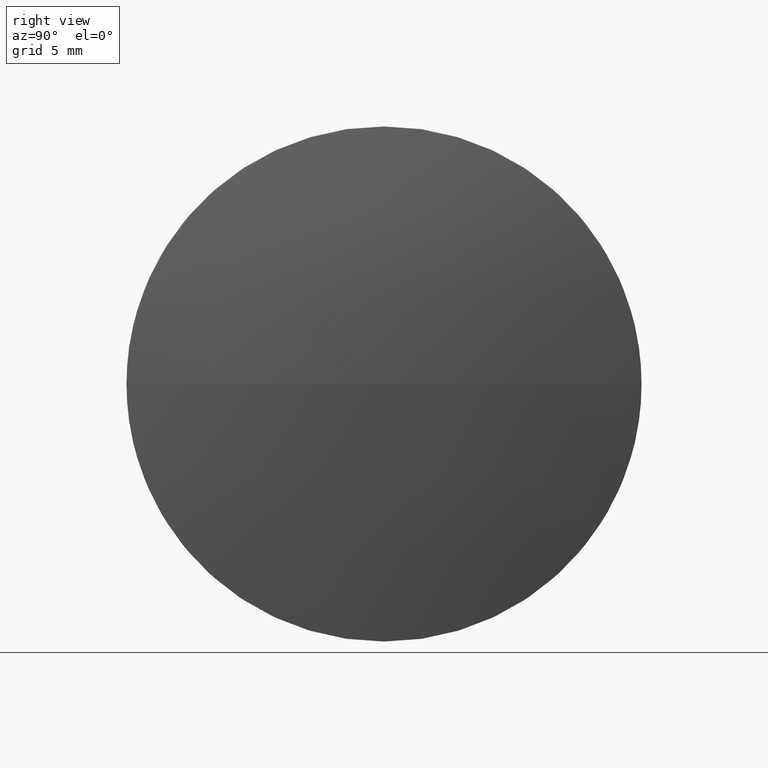
[diagram: clean part render]
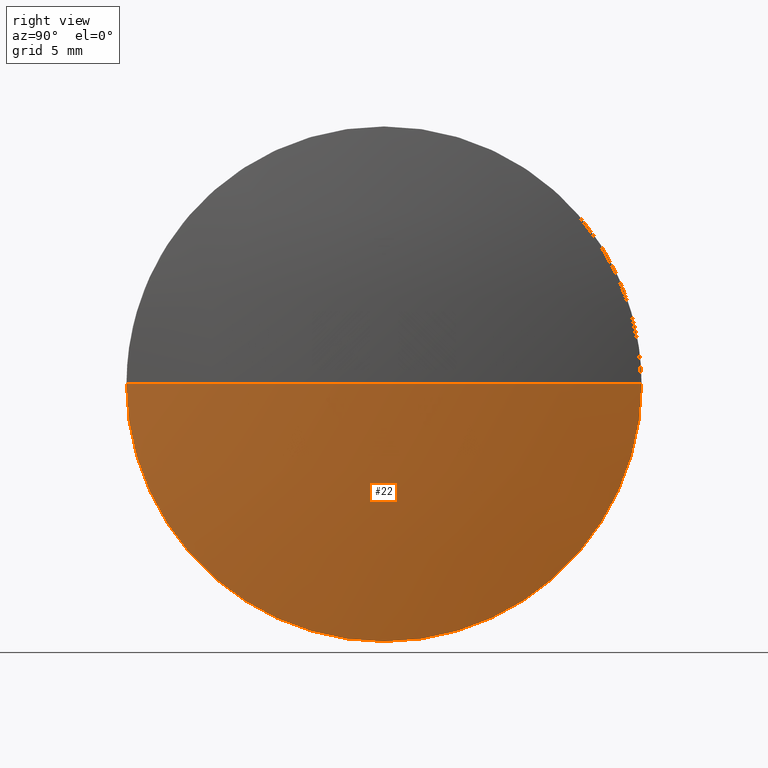
[diagram: same view with one face highlighted and labeled with its STEP entity id]
A machine part, right view. The second image highlights one B-rep face of the part: STEP entity #22.
In plain terms, the highlighted spherical surface has radius 64.6469 mm.
Its self-contained STEP definition (entity closure, byte-faithful):
#1 = EDGE_CURVE ( 'NONE', #79, #54, #132, .T. ) ;
#10 = ORIENTED_EDGE ( 'NONE', *, *, #63, .F. ) ;
#15 = ORIENTED_EDGE ( 'NONE', *, *, #177, .F. ) ;
#16 = CARTESIAN_POINT ( 'NONE',  ( 663.6944572841594000, 125.1777850517631400, 0.0000000000000000000 ) ) ;
#18 = ORIENTED_EDGE ( 'NONE', *, *, #1, .T. ) ;
#22 = ADVANCED_FACE ( 'NONE', ( #66 ), #142, .T. ) ;
#26 = DIRECTION ( 'NONE',  ( -1.000000000000000000, -0.0000000000000000000, -0.0000000000000000000 ) ) ;
#30 = EDGE_CURVE ( 'NONE', #79, #40, #109, .T. ) ;
#37 = CIRCLE ( 'NONE', #160, 12.50000000000001100 ) ;
#40 = VERTEX_POINT ( 'NONE', #16 ) ;
#46 = DIRECTION ( 'NONE',  ( 0.0000000000000000000, 0.0000000000000000000, 1.000000000000000000 ) ) ;
#47 = AXIS2_PLACEMENT_3D ( 'NONE', #155, #172, #168 ) ;
#50 = EDGE_LOOP ( 'NONE', ( #53, #18, #10, #15 ) ) ;
#53 = ORIENTED_EDGE ( 'NONE', *, *, #30, .F. ) ;
#54 = VERTEX_POINT ( 'NONE', #165 ) ;
#63 = EDGE_CURVE ( 'NONE', #123, #54, #37, .T. ) ;
#64 = CIRCLE ( 'NONE', #106, 12.50000000000001100 ) ;
#66 = FACE_OUTER_BOUND ( 'NONE', #50, .T. ) ;
#68 = DIRECTION ( 'NONE',  ( 0.0000000000000000000, 1.224646799147353200E-016, -1.000000000000000000 ) ) ;
#75 = CARTESIAN_POINT ( 'NONE',  ( 663.6944572841594000, 112.6777850517631800, 0.0000000000000000000 ) ) ;
#79 = VERTEX_POINT ( 'NONE', #133 ) ;
#80 = AXIS2_PLACEMENT_3D ( 'NONE', #102, #137, #153 ) ;
#102 = CARTESIAN_POINT ( 'NONE',  ( 600.2675720382576400, 112.6777850517629700, 0.0000000000000000000 ) ) ;
#104 = CARTESIAN_POINT ( 'NONE',  ( 663.6944572841594000, 112.6777850517631800, 0.0000000000000000000 ) ) ;
#106 = AXIS2_PLACEMENT_3D ( 'NONE', #75, #134, #183 ) ;
#109 = CIRCLE ( 'NONE', #47, 64.64688524590178500 ) ;
#123 = VERTEX_POINT ( 'NONE', #150 ) ;
#132 = CIRCLE ( 'NONE', #144, 64.64688524590182800 ) ;
#133 = CARTESIAN_POINT ( 'NONE',  ( 664.9144572841594300, 112.6777850517629700, 0.0000000000000000000 ) ) ;
#134 = DIRECTION ( 'NONE',  ( -1.000000000000000000, -0.0000000000000000000, -0.0000000000000000000 ) ) ;
#137 = DIRECTION ( 'NONE',  ( -0.0000000000000000000, 0.0000000000000000000, -1.000000000000000000 ) ) ;
#141 = DIRECTION ( 'NONE',  ( 0.0000000000000000000, 1.000000000000000000, 1.224646799147353000E-016 ) ) ;
#142 = SPHERICAL_SURFACE ( 'NONE', #80, 64.64688524590181400 ) ;
#144 = AXIS2_PLACEMENT_3D ( 'NONE', #148, #68, #141 ) ;
#148 = CARTESIAN_POINT ( 'NONE',  ( 600.2675720382576400, 112.6777850517629700, 0.0000000000000000000 ) ) ;
#150 = CARTESIAN_POINT ( 'NONE',  ( 663.6944572841594000, 112.6777850517631800, -12.50000000000001100 ) ) ;
#153 = DIRECTION ( 'NONE',  ( 0.0000000000000000000, 1.000000000000000000, 0.0000000000000000000 ) ) ;
#155 = CARTESIAN_POINT ( 'NONE',  ( 600.2675720382576400, 112.6777850517629700, 0.0000000000000000000 ) ) ;
#160 = AXIS2_PLACEMENT_3D ( 'NONE', #104, #26, #46 ) ;
#165 = CARTESIAN_POINT ( 'NONE',  ( 663.6944572841594000, 100.1777850517630000, -1.530808498934188200E-015 ) ) ;
#168 = DIRECTION ( 'NONE',  ( 1.000000000000000000, 0.0000000000000000000, 0.0000000000000000000 ) ) ;
#172 = DIRECTION ( 'NONE',  ( -0.0000000000000000000, 0.0000000000000000000, 1.000000000000000000 ) ) ;
#177 = EDGE_CURVE ( 'NONE', #40, #123, #64, .T. ) ;
#183 = DIRECTION ( 'NONE',  ( 0.0000000000000000000, 0.0000000000000000000, 1.000000000000000000 ) ) ;